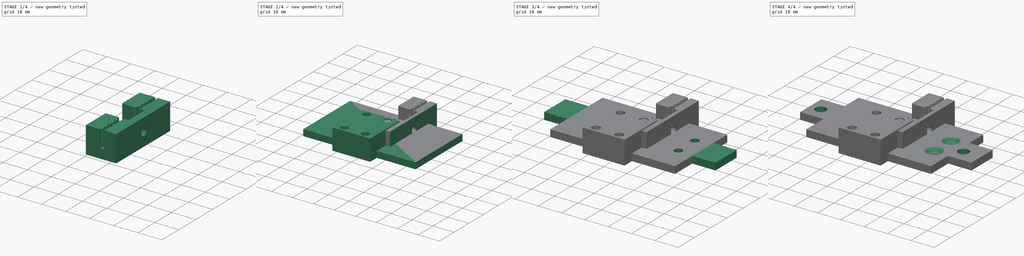
[diagram: build sequence overview — one tinted view per stage of 4, left to right]
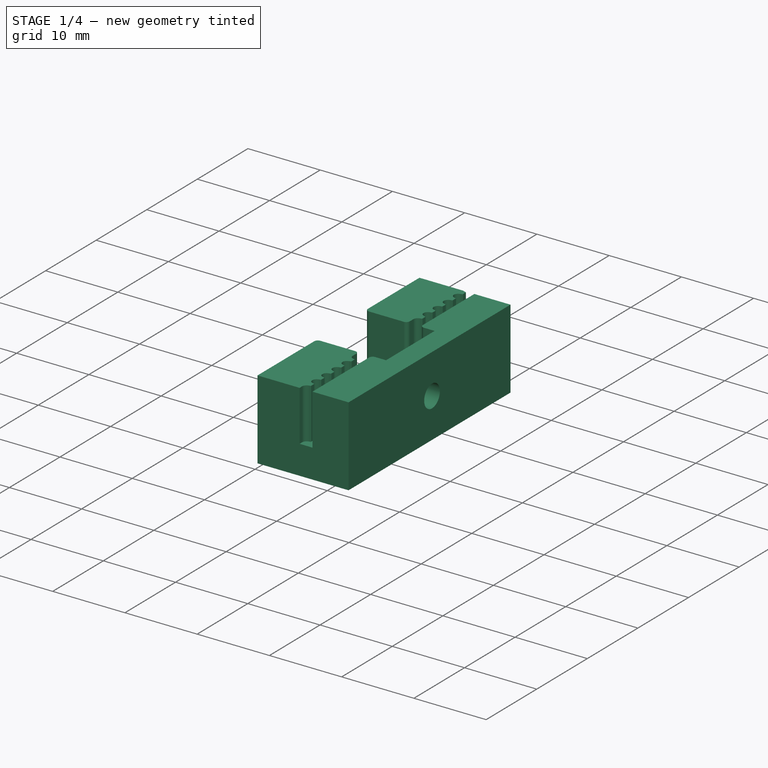
[diagram: stage 1 of 4 — iso view after this stage's code; geometry added in this stage tinted green]
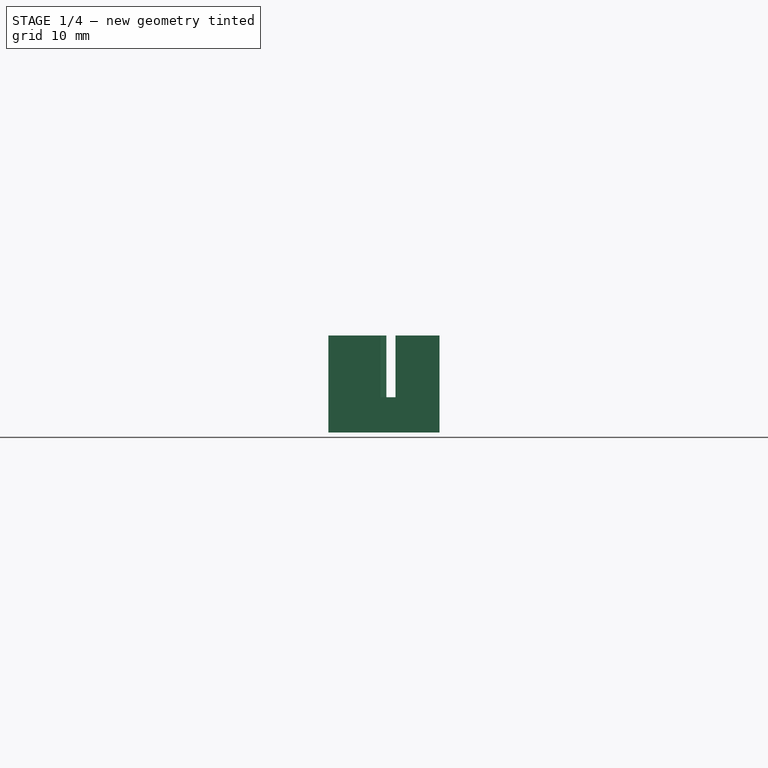
[diagram: stage 1 of 4 — front view after this stage's code; geometry added in this stage tinted green]
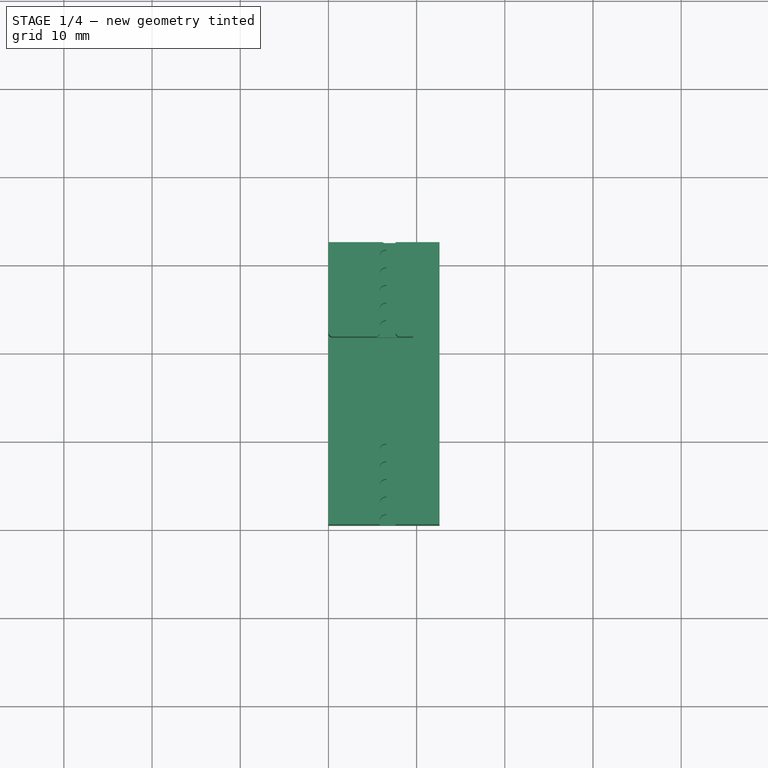
[diagram: stage 1 of 4 — top view after this stage's code; geometry added in this stage tinted green]
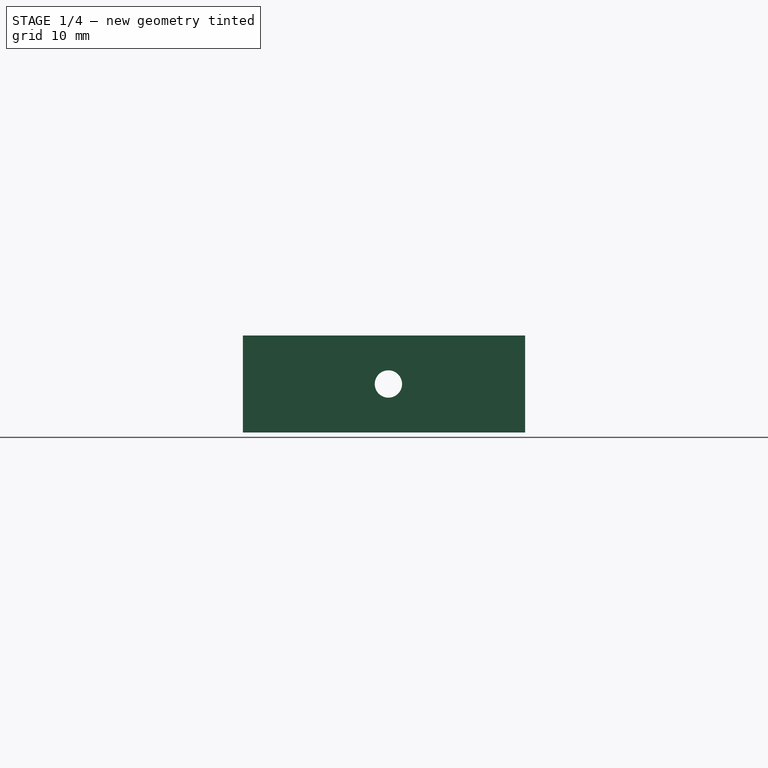
[diagram: stage 1 of 4 — right view after this stage's code; geometry added in this stage tinted green]
FCSTD DOCUMENT  (FreeCAD 0.18.4R)
Label: support_advanced_right
License: All rights reserved
LicenseURL: http://en.wikipedia.org/wiki/All_rights_reserved
objects: Sketcher::SketchObject×11, PartDesign::Pocket×6, PartDesign::Pad×4, PartDesign::Body×3, PartDesign::Hole×1, Part::Feature×1, PartDesign::FeatureBase×1
note: 38 computed .brp shape members not serialized (recipe doc carries the construction recipe); baked Part::Feature solids carry a one-line shape summary decoded from their .brp

FEATURE [PartDesign::Body] Body003
  Group = -> [Sketch009,Pad003]
  Origin = -> Origin003
  Placement = pos=(13.5,11,-10) rot=(0,0,1;1.5708rad)
  Tip = -> Pad003
FEATURE [Part::Feature] Part__Feature  label="FusionComponent"
  Placement = pos=(-15,-6,-1) rot=(0,1,0;3.14159rad)
  shape: bbox 12.6 x 34 x 11 mm, 107 faces (baked)
FEATURE [PartDesign::FeatureBase] BaseFeature
  BaseFeature = -> Part__Feature
FEATURE [Sketcher::SketchObject] Sketch012
  MapMode = 5
  Placement = pos=(0,0,0) rot=(1,0,0;1.5708rad)
  Support = -> [BaseFeature]
FEATURE [Sketcher::SketchObject] Sketch013
  ExternalGeometry = -> [BaseFeature]
  MapMode = 5
  Placement = pos=(0,0,0) rot=(1,0,0;1.5708rad)
  Support = -> [BaseFeature]
  sketch-geometry (4):
    g0: LineSegment StartX=-0.323686 StartY=-1.65961 StartZ=0 EndX=13.0305 EndY=-1.65961 EndZ=0
    g1: LineSegment StartX=13.0305 StartY=-1.65961 StartZ=0 EndX=13.0305 EndY=9.67526 EndZ=0
    g2: LineSegment StartX=13.0305 StartY=9.67526 StartZ=0 EndX=-0.323686 EndY=9.67526 EndZ=0
    g3: LineSegment StartX=-0.323686 StartY=9.67526 StartZ=0 EndX=-0.323686 EndY=-1.65961 EndZ=0
  constraints (8):
    c: Coincident(g0,g1)
    c: Coincident(g1,g2)
    c: Coincident(g2,g3)
    c: Coincident(g3,g0)
    c: Horizontal(g0)
    c: Horizontal(g2)
    c: Vertical(g1)
    c: Vertical(g3)
FEATURE [PartDesign::Pocket] Pocket005
  BaseFeature = -> BaseFeature
  Length = 0.5
  Length2 = 100
  Profile = -> Sketch013
  Type = 0
FEATURE [Sketcher::SketchObject] Sketch014
  MapMode = 5
  Placement = pos=(0,34,0) rot=(0,0.707107,0.707107;3.14159rad)
  Support = -> [Pocket005]
  sketch-geometry (4):
    g0: LineSegment StartX=-13.3683 StartY=-1.91401 StartZ=0 EndX=1.62692 EndY=-1.91401 EndZ=0
    g1: LineSegment StartX=1.62692 StartY=-1.91401 StartZ=0 EndX=1.62692 EndY=9.8071 EndZ=0
    g2: LineSegment StartX=1.62692 StartY=9.8071 StartZ=0 EndX=-13.3683 EndY=9.8071 EndZ=0
    g3: LineSegment StartX=-13.3683 StartY=9.8071 StartZ=0 EndX=-13.3683 EndY=-1.91401 EndZ=0
  constraints (8):
    c: Coincident(g0,g1)
    c: Coincident(g1,g2)
    c: Coincident(g2,g3)
    c: Coincident(g3,g0)
    c: Horizontal(g0)
    c: Horizontal(g2)
    c: Vertical(g1)
    c: Vertical(g3)
FEATURE [PartDesign::Pocket] Pocket006
  BaseFeature = -> Pocket005
  Length = 1.5
  Length2 = 100
  Profile = -> Sketch014
  Type = 0
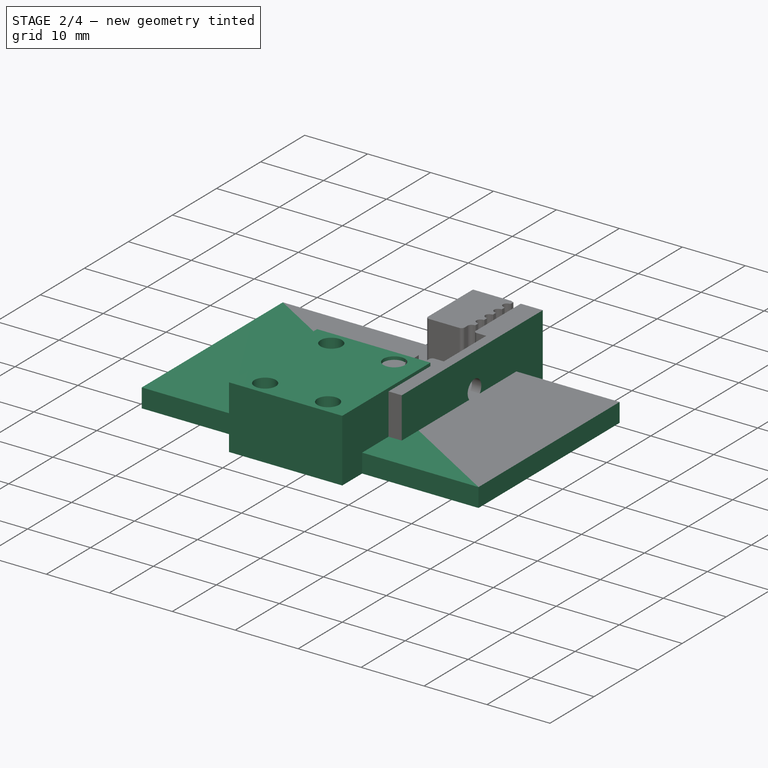
[diagram: stage 2 of 4 — iso view after this stage's code; geometry added in this stage tinted green]
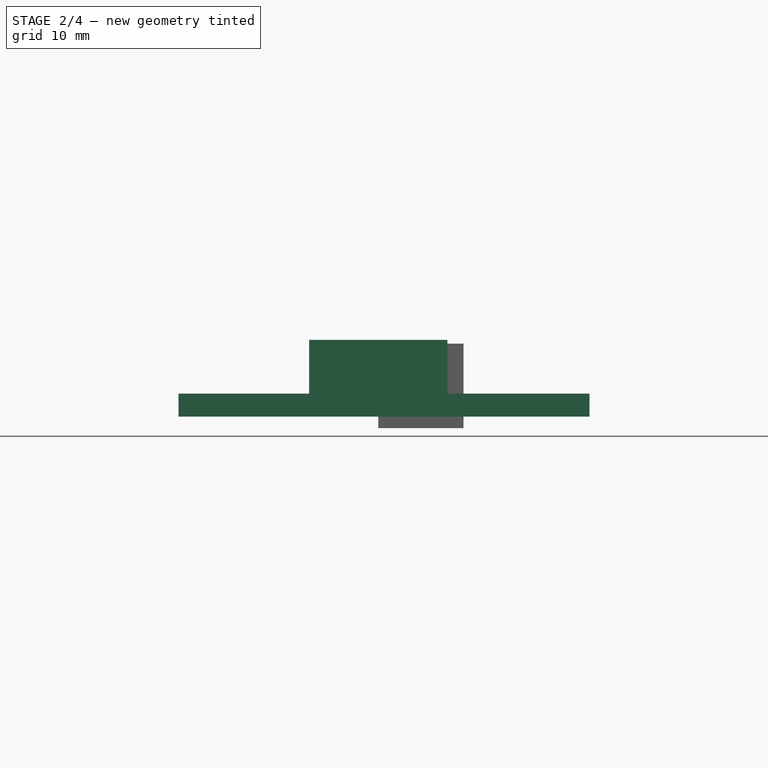
[diagram: stage 2 of 4 — front view after this stage's code; geometry added in this stage tinted green]
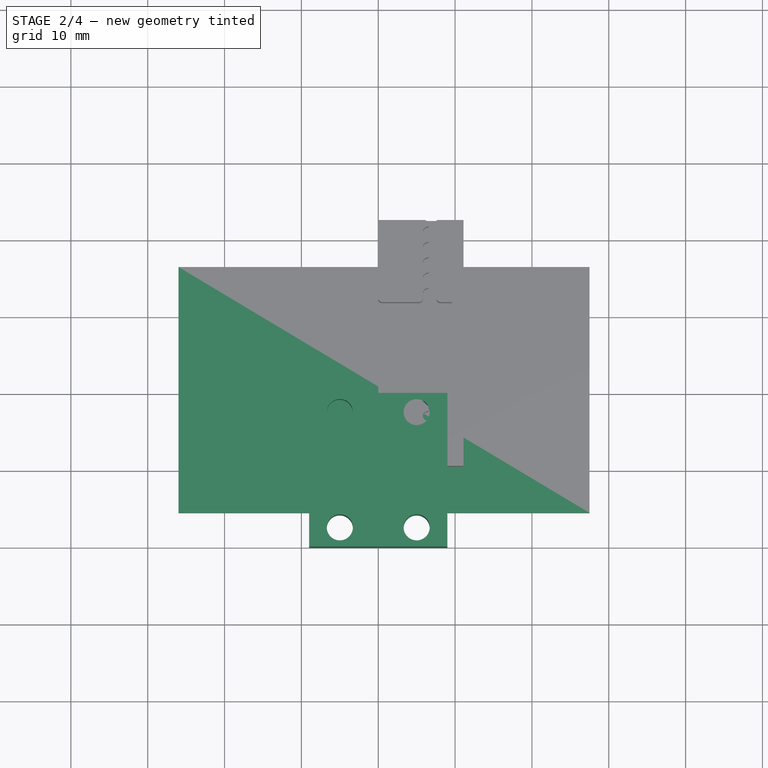
[diagram: stage 2 of 4 — top view after this stage's code; geometry added in this stage tinted green]
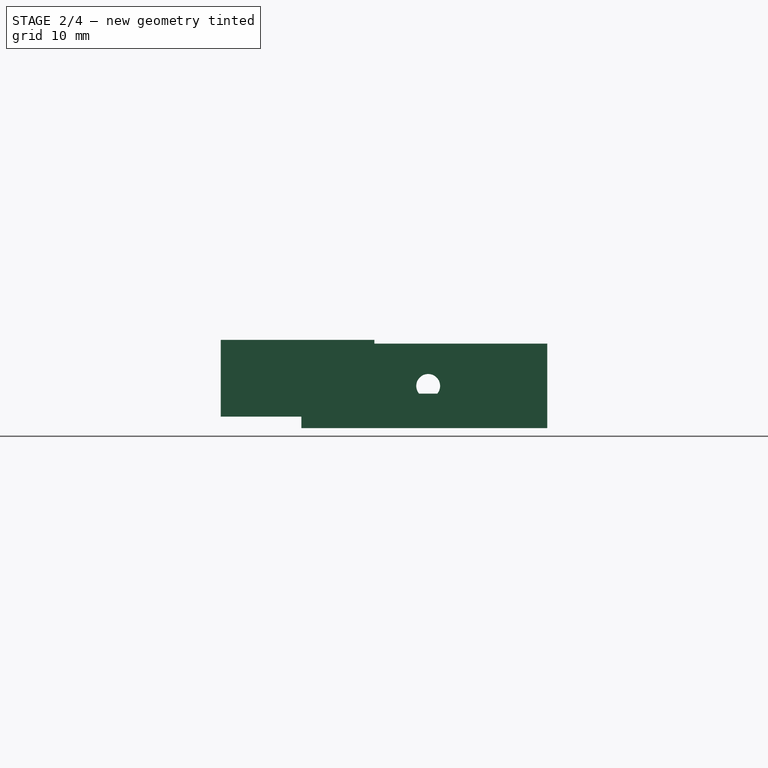
[diagram: stage 2 of 4 — right view after this stage's code; geometry added in this stage tinted green]
FEATURE [Sketcher::SketchObject] Sketch
  MapMode = 5
  Support = -> [XY_Plane]
  sketch-geometry (4):
    g0: LineSegment StartX=-26 StartY=26.5 StartZ=0 EndX=27.5 EndY=26.5 EndZ=0
    g1: LineSegment StartX=27.5 StartY=26.5 StartZ=0 EndX=27.499 EndY=-5.5 EndZ=0
    g2: LineSegment StartX=27.499 StartY=-5.5 StartZ=0 EndX=-26 EndY=-5.5 EndZ=0
    g3: LineSegment StartX=-26 StartY=-5.5 StartZ=0 EndX=-26 EndY=26.5 EndZ=0
  constraints (11):
    c: Coincident(g0,g1)
    c: Coincident(g1,g2)
    c: Coincident(g2,g3)
    c: Coincident(g3,g0)
    c: Distance(g0,g-2) = 27.5
    c: Parallel(g-1,g0)
    c: Distance(g3) = 32
    c: Distance(g1) = 32
    c: Distance(g-1,g2) = 5.5
    c: Parallel(g-2,g3)
    c: Distance(g0,g-2) = 26
FEATURE [PartDesign::Pad] Pad
  Length = 3
  Length2 = 100
  Profile = -> Sketch
  Type = 0
FEATURE [PartDesign::Body] Body
  Group = -> [Sketch,Pad,Sketch001,Pocket,Sketch002,Pad001,Sketch003,Pad002,Sketch011,Pocket003,Pocket004,Hole]
  Origin = -> Origin
  Tip = -> Hole
FEATURE [Sketcher::SketchObject] Sketch009
  MapMode = 5
  Support = -> [XY_Plane003]
  sketch-geometry (8):
    g0: LineSegment StartX=-9 StartY=-10 StartZ=0 EndX=9 EndY=-10 EndZ=0
    g1: LineSegment StartX=9 StartY=-10 StartZ=0 EndX=9 EndY=10 EndZ=0
    g2: LineSegment StartX=9 StartY=10 StartZ=0 EndX=-9 EndY=10 EndZ=0
    g3: LineSegment StartX=-9 StartY=10 StartZ=0 EndX=-9 EndY=-10 EndZ=0
    g4: Circle CenterX=-5 CenterY=7.5 CenterZ=0 NormalX=0 NormalY=0 NormalZ=1 AngleXU=0 Radius=1.7
    g5: Circle CenterX=-5 CenterY=-7.5 CenterZ=0 NormalX=0 NormalY=0 NormalZ=1 AngleXU=0 Radius=1.7
    g6: Circle CenterX=5 CenterY=7.5 CenterZ=0 NormalX=0 NormalY=0 NormalZ=1 AngleXU=0 Radius=1.7
    g7: Circle CenterX=5 CenterY=-7.5 CenterZ=0 NormalX=0 NormalY=0 NormalZ=1 AngleXU=0 Radius=1.7
  constraints (19):
    c: Coincident(g0,g1)
    c: Coincident(g1,g2)
    c: Coincident(g2,g3)
    c: Coincident(g3,g0)
    c: Horizontal(g0)
    c: Vertical(g1)
    c: DistanceX(g2,g2) = 18
    c: DistanceY(g3,g3) = 20
    c: Symmetric(g2,g1,g-2)
    c: Symmetric(g2,g0,g-1)
    c: Radius(g6) = 1.7
    c: Radius(g4) = 1.7
    c: Radius(g5) = 1.7
    c: Radius(g7) = 1.7
    c: Distance(g6,g4) = 10
    c: Distance(g5,g4) = 15
    c: Symmetric(g4,g6,g-2)
    c: Symmetric(g5,g7,g-2)
    c: Symmetric(g5,g4,g-1)
FEATURE [PartDesign::Pad] Pad003
  Length = 10
  Length2 = 100
  Profile = -> Sketch009
  Type = 0
FEATURE [Sketcher::SketchObject] Sketch015
  MapMode = 5
  Placement = pos=(12.6,0,0) rot=(0.57735,0.57735,0.57735;2.0944rad)
  Support = -> [Pocket006]
FEATURE [Sketcher::SketchObject] Sketch016
  MapMode = 5
  Placement = pos=(12.6,0,0) rot=(0.57735,0.57735,0.57735;2.0944rad)
  Support = -> [Pocket006]
  sketch-geometry (4):
    g0: LineSegment StartX=-2.18694 StartY=-2.49866 StartZ=0 EndX=36.5111 EndY=-2.49866 EndZ=0
    g1: LineSegment StartX=36.5111 StartY=-2.49866 StartZ=0 EndX=36.5111 EndY=11.8501 EndZ=0
    g2: LineSegment StartX=36.5111 StartY=11.8501 StartZ=0 EndX=-2.18694 EndY=11.8501 EndZ=0
    g3: LineSegment StartX=-2.18694 StartY=11.8501 StartZ=0 EndX=-2.18694 EndY=-2.49866 EndZ=0
  constraints (8):
    c: Coincident(g0,g1)
    c: Coincident(g1,g2)
    c: Coincident(g2,g3)
    c: Coincident(g3,g0)
    c: Horizontal(g0)
    c: Horizontal(g2)
    c: Vertical(g1)
    c: Vertical(g3)
FEATURE [PartDesign::Pocket] Pocket007
  BaseFeature = -> Pocket006
  Length = 1.5
  Length2 = 100
  Profile = -> Sketch016
  Type = 0
FEATURE [PartDesign::Body] Body004
  BaseFeature = -> Part__Feature
  Group = -> [BaseFeature,Sketch012,Sketch013,Pocket005,Sketch014,Pocket006,Sketch015,Sketch016,Pocket007]
  Origin = -> Origin004
  Placement = pos=(-15,-6,-1) rot=(0,1,0;3.14159rad)
  Tip = -> Pocket007
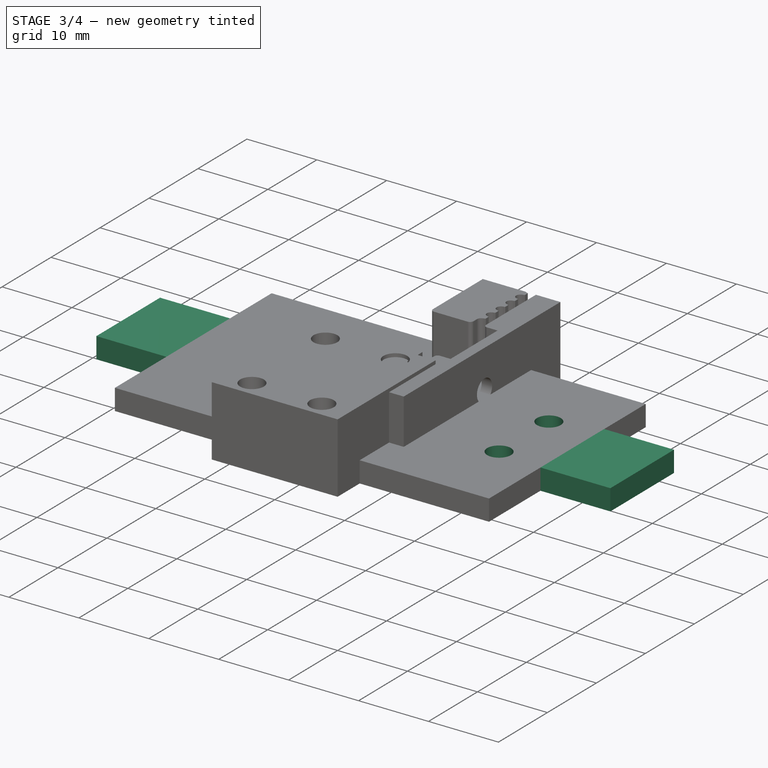
[diagram: stage 3 of 4 — iso view after this stage's code; geometry added in this stage tinted green]
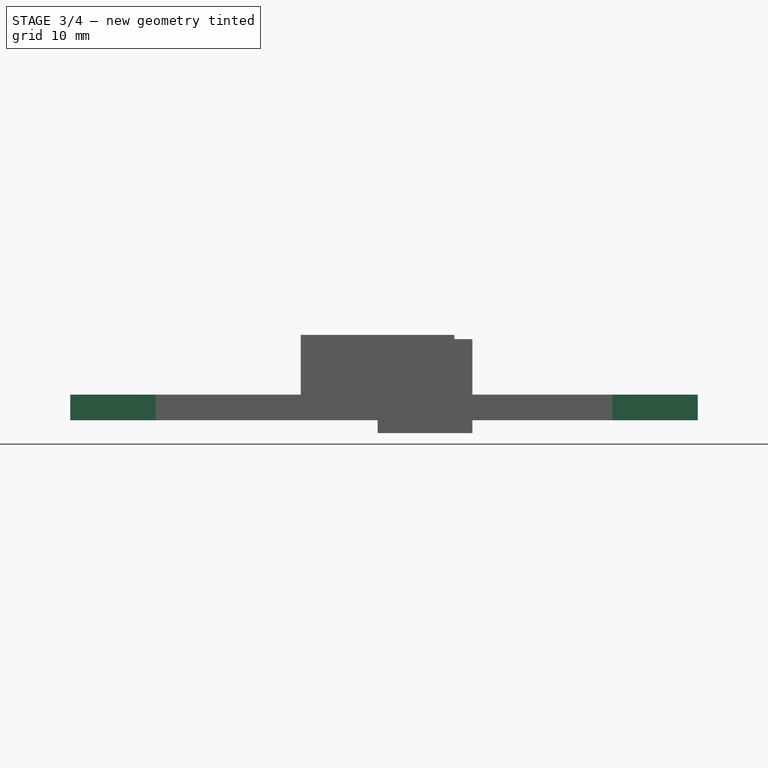
[diagram: stage 3 of 4 — front view after this stage's code; geometry added in this stage tinted green]
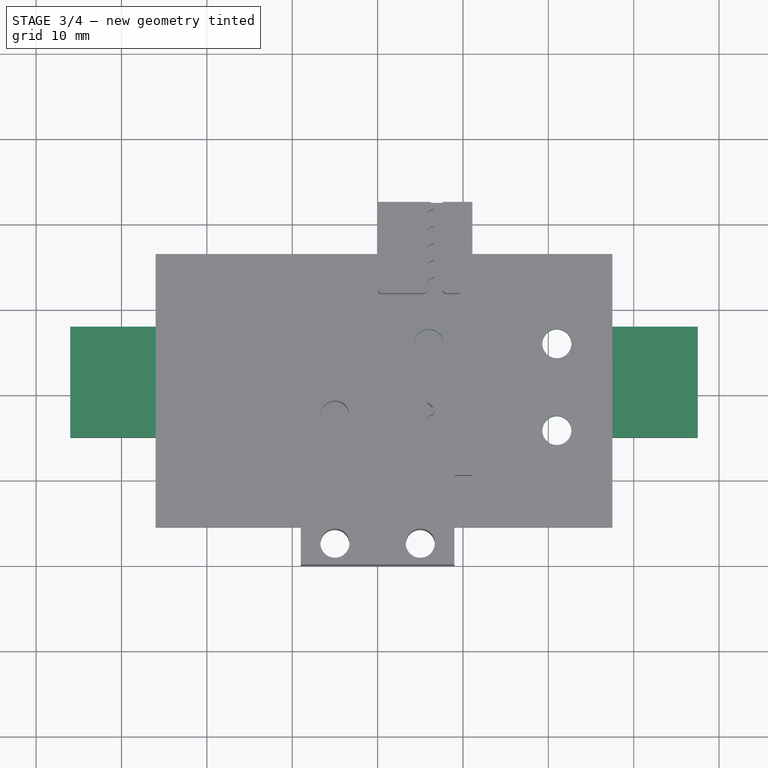
[diagram: stage 3 of 4 — top view after this stage's code; geometry added in this stage tinted green]
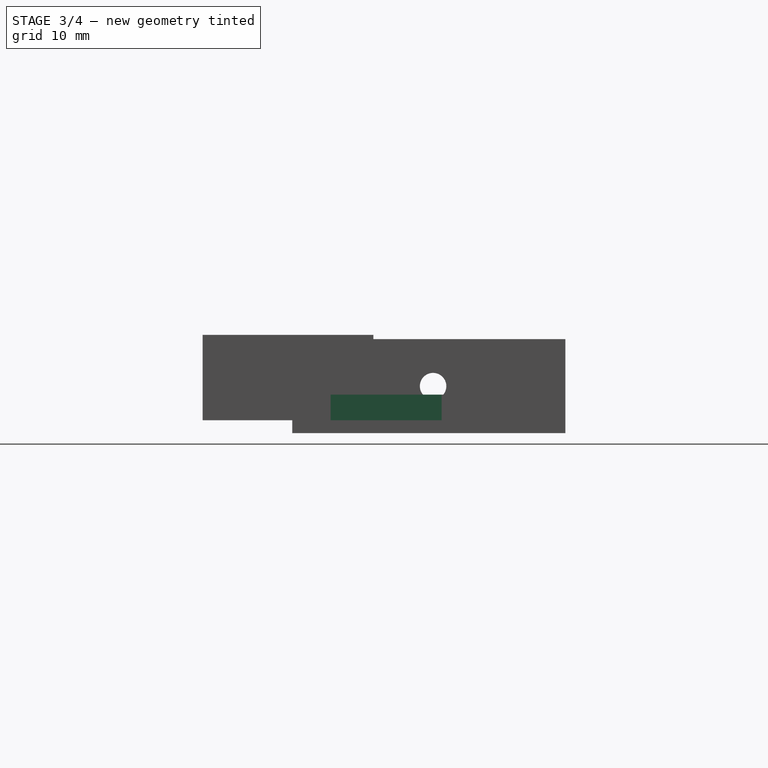
[diagram: stage 3 of 4 — right view after this stage's code; geometry added in this stage tinted green]
FEATURE [Sketcher::SketchObject] Sketch001
  MapMode = 5
  Placement = pos=(0,0,3) rot=(0,0,1;0rad)
  Support = -> [Pad]
  sketch-geometry (4):
    g0: Circle CenterX=6 CenterY=16 CenterZ=0 NormalX=0 NormalY=0 NormalZ=1 AngleXU=0 Radius=1.7
    g1: Circle CenterX=21 CenterY=16 CenterZ=0 NormalX=0 NormalY=0 NormalZ=1 AngleXU=0 Radius=1.7
    g2: Circle CenterX=6 CenterY=5.86434 CenterZ=0 NormalX=0 NormalY=0 NormalZ=1 AngleXU=0 Radius=1.7
    g3: Circle CenterX=21 CenterY=5.83261 CenterZ=0 NormalX=0 NormalY=0 NormalZ=1 AngleXU=0 Radius=1.7
  constraints (8):
    c: Radius(g0) = 1.7
    c: DistanceX(g-2,g0) = 6
    c: Radius(g1) = 1.7
    c: Distance(g1,g0) = 15
    c: Radius(g3) = 1.7
    c: Radius(g2) = 1.7
    c: Distance(g3,g2) = 15
    c: Distance(g2,g-2) = 6
FEATURE [PartDesign::Pocket] Pocket
  BaseFeature = -> Pad
  Length = 3
  Length2 = 100
  Profile = -> Sketch001
  Type = 0
FEATURE [Sketcher::SketchObject] Sketch002
  ExternalGeometry = -> [Pocket]
  MapMode = 5
  Placement = pos=(-26,2.9e-15,0) rot=(-0.57735,0.57735,0.57735;4.18879rad)
  Support = -> [Pocket]
  sketch-geometry (4):
    g0: LineSegment StartX=-18 StartY=0 StartZ=0 EndX=-5 EndY=0 EndZ=0
    g1: LineSegment StartX=-5 StartY=0 StartZ=0 EndX=-5 EndY=3 EndZ=0
    g2: LineSegment StartX=-5 StartY=3 StartZ=0 EndX=-18 EndY=3 EndZ=0
    g3: LineSegment StartX=-18 StartY=3 StartZ=0 EndX=-18 EndY=0 EndZ=0
  constraints (12):
    c: Parallel(g1,g-2)
    c: Parallel(g3,g-2)
    c: Parallel(g2,g0)
    c: Distance(g-1,g1) = 5
    c: Distance(g-1,g0) = 18
    c: Coincident(g2,g1)
    c: Coincident(g2,g3)
    c: Coincident(g0,g3)
    c: Coincident(g0,g1)
    c: Parallel(g2,g-4)
    c: PointOnObject(g0,g-1)
    c: PointOnObject(g2,g-4)
FEATURE [PartDesign::Pad] Pad001
  BaseFeature = -> Pocket
  Length = 10
  Length2 = 100
  Profile = -> Sketch002
  Type = 0
FEATURE [Sketcher::SketchObject] Sketch003
  ExternalGeometry = -> [Pad001]
  MapMode = 5
  Placement = pos=(27.4992,-0.000839181,0) rot=(0.577362,0.577344,0.577344;2.09438rad)
  Support = -> [Pad001]
  sketch-geometry (4):
    g0: LineSegment StartX=5 StartY=-5.34717e-05 StartZ=0 EndX=18 EndY=0.00985447 EndZ=0
    g1: LineSegment StartX=18 StartY=0.00985447 StartZ=0 EndX=18 EndY=3.01022 EndZ=0
    g2: LineSegment StartX=18 StartY=3.01022 StartZ=0 EndX=5 EndY=3.00032 EndZ=0
    g3: LineSegment StartX=5 StartY=3.00032 StartZ=0 EndX=5 EndY=-5.34717e-05 EndZ=0
  constraints (9):
    c: Parallel(g3,g-2)
    c: Parallel(g1,g-2)
    c: Parallel(g0,g2)
    c: Coincident(g0,g3)
    c: Coincident(g2,g3)
    c: Coincident(g0,g1)
    c: Coincident(g2,g1)
    c: Distance(g-1,g0) = 5
    c: Distance(g-1,g1) = 18
FEATURE [PartDesign::Pad] Pad002
  BaseFeature = -> Pad001
  Length = 10
  Length2 = 100
  Profile = -> Sketch003
  Type = 0
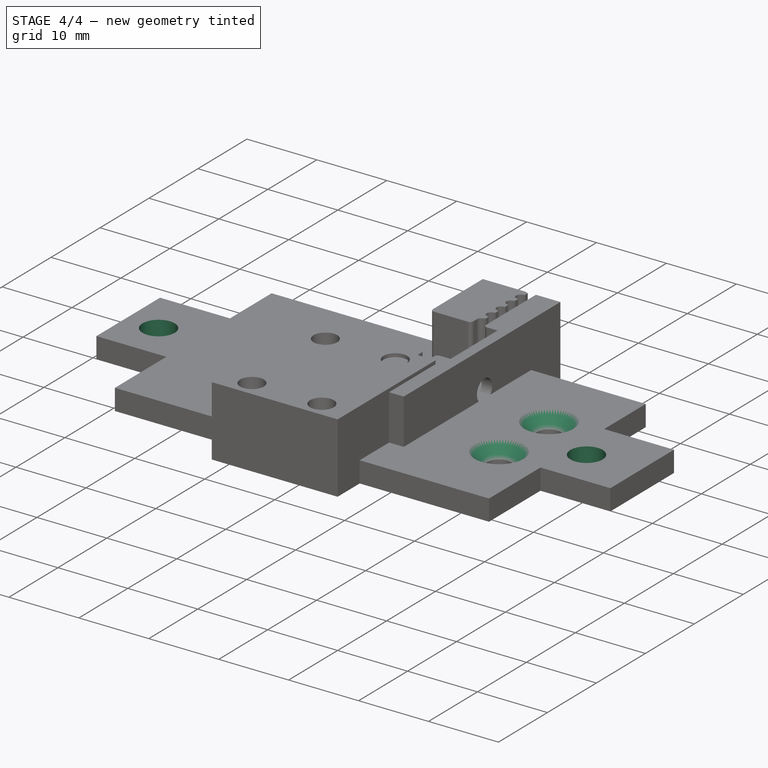
[diagram: stage 4 of 4 — iso view after this stage's code; geometry added in this stage tinted green]
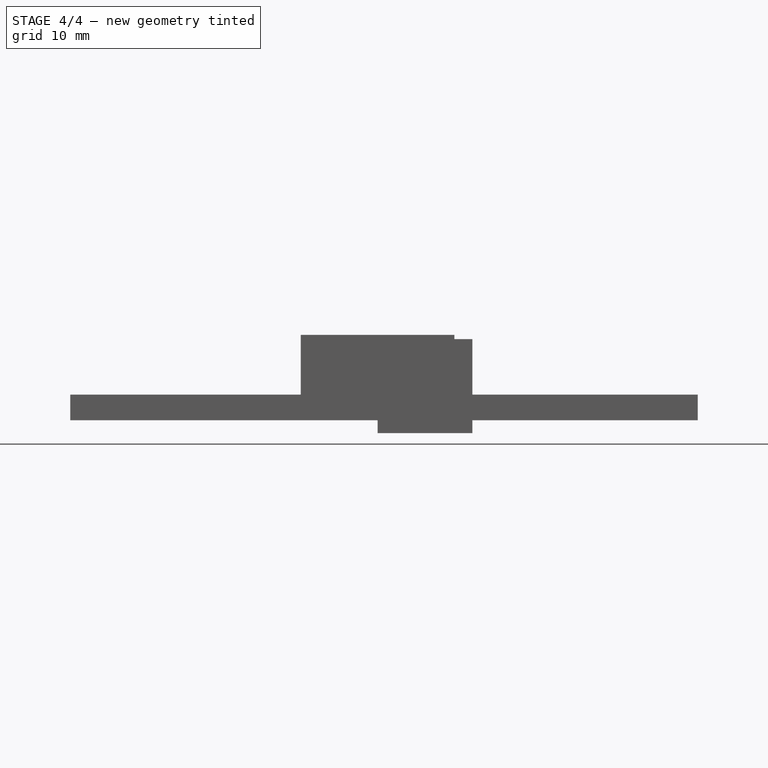
[diagram: stage 4 of 4 — front view after this stage's code; geometry added in this stage tinted green]
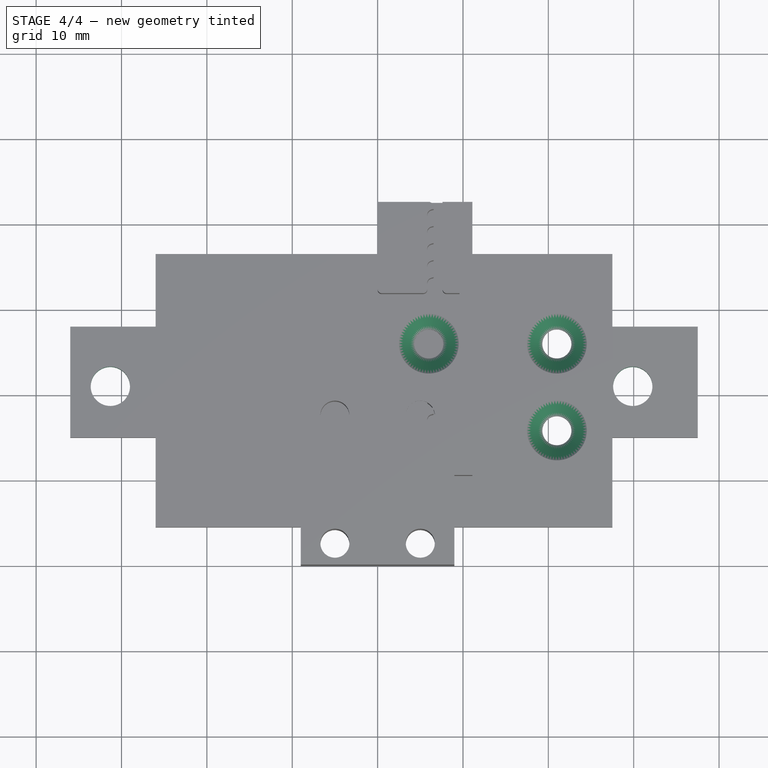
[diagram: stage 4 of 4 — top view after this stage's code; geometry added in this stage tinted green]
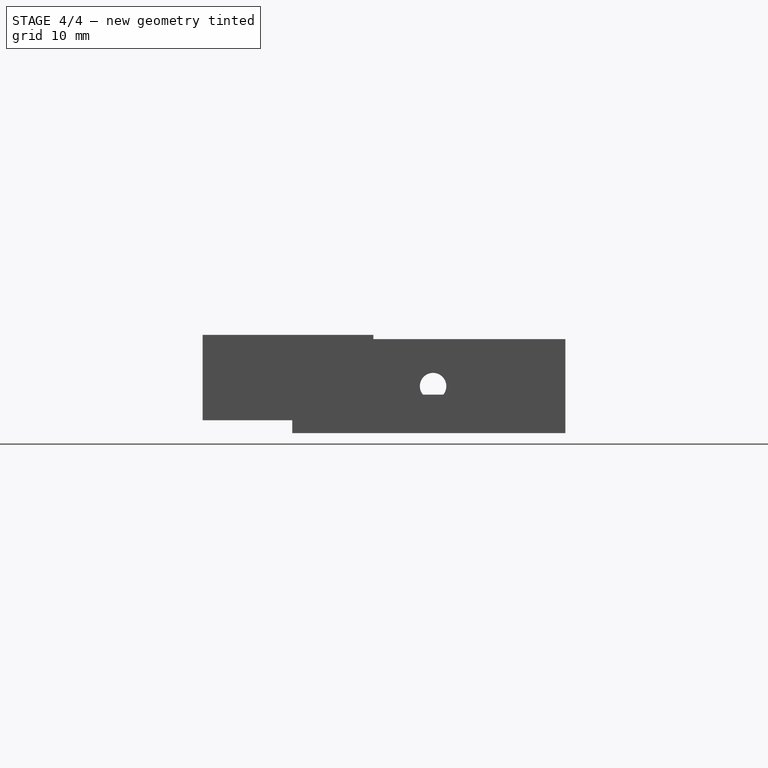
[diagram: stage 4 of 4 — right view after this stage's code; geometry added in this stage tinted green]
FEATURE [Sketcher::SketchObject] Sketch011
  MapMode = 5
  Placement = pos=(0,0,0) rot=(1,0,0;3.14159rad)
  Support = -> [Pad002]
  sketch-geometry (2):
    g0: Circle CenterX=-31.3064 CenterY=-11 CenterZ=0 NormalX=0 NormalY=0 NormalZ=1 AngleXU=0 Radius=2.3
    g1: Circle CenterX=29.8905 CenterY=-11 CenterZ=0 NormalX=0 NormalY=0 NormalZ=1 AngleXU=0 Radius=2.3
  constraints (4):
    c: Radius(g0) = 2.3
    c: Radius(g1) = 2.3
    c: Distance(g0,g-1) = 11
    c: Distance(g1,g-1) = 11
FEATURE [PartDesign::Pocket] Pocket003
  BaseFeature = -> Pad002
  Length = 3
  Length2 = 100
  Profile = -> Sketch011
  Type = 0
FEATURE [PartDesign::Pocket] Pocket004
  BaseFeature = -> Pocket003
  Length = 4
  Length2 = 100
  Profile = -> Sketch011
  Type = 0
FEATURE [PartDesign::Hole] Hole
  BaseFeature = -> Pocket004
  Depth = 14
  DepthType = 0
  Diameter = 1.75
  DrillPoint = 1
  DrillPointAngle = 118
  HoleCutCountersinkAngle = 90
  HoleCutDepth = 0
  HoleCutDiameter = 7
  HoleCutType = 2
  ModelActualThread = false
  Profile = -> Sketch001
  Tapered = false
  TaperedAngle = 90
  ThreadAngle = 0
  ThreadClass = 0
  ThreadCutOffInner = 0
  ThreadCutOffOuter = 0
  ThreadDirection = 0
  ThreadFit = 0
  ThreadPitch = 0
  ThreadSize = 0
  ThreadType = 0
  Threaded = false
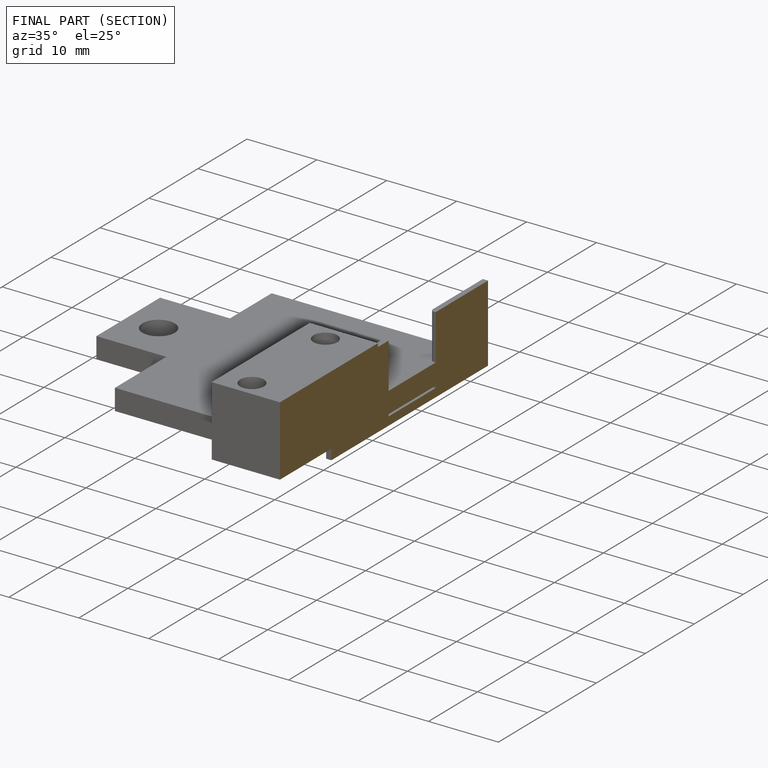
[diagram: finished part — half-section view (interior)]
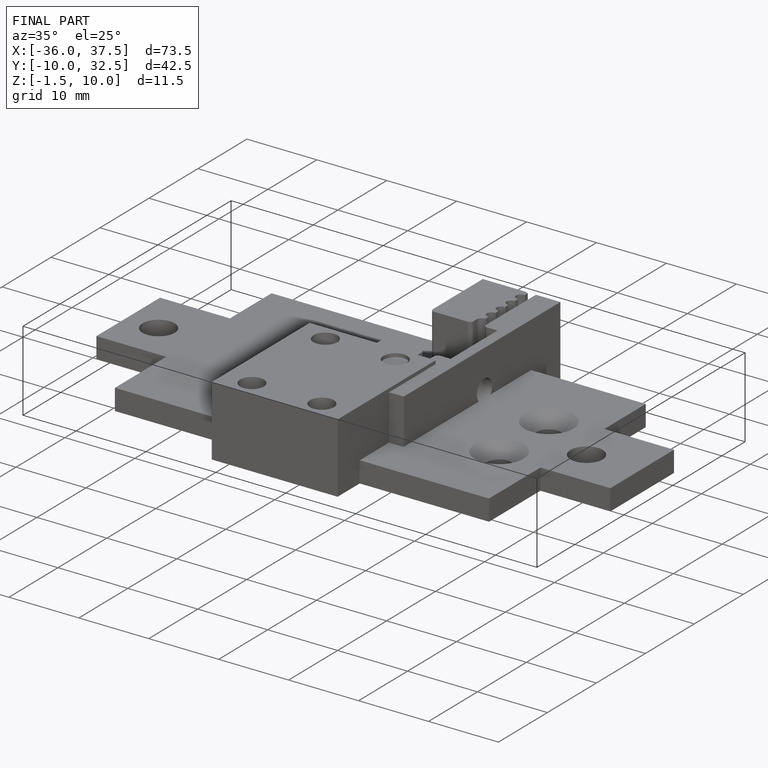
[diagram: finished part — iso view with bounding-box wireframe]
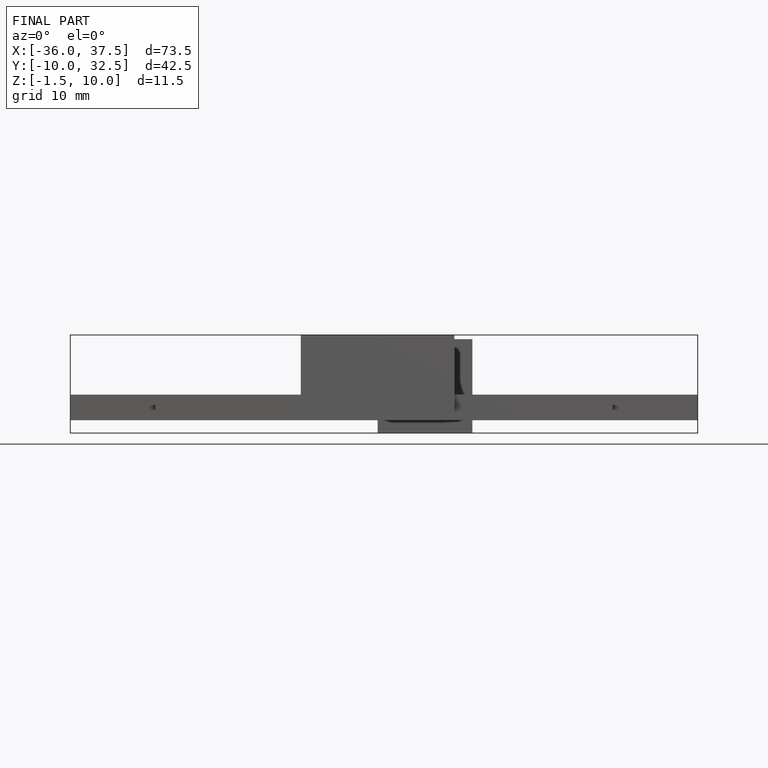
[diagram: finished part — front view with bounding-box wireframe]
